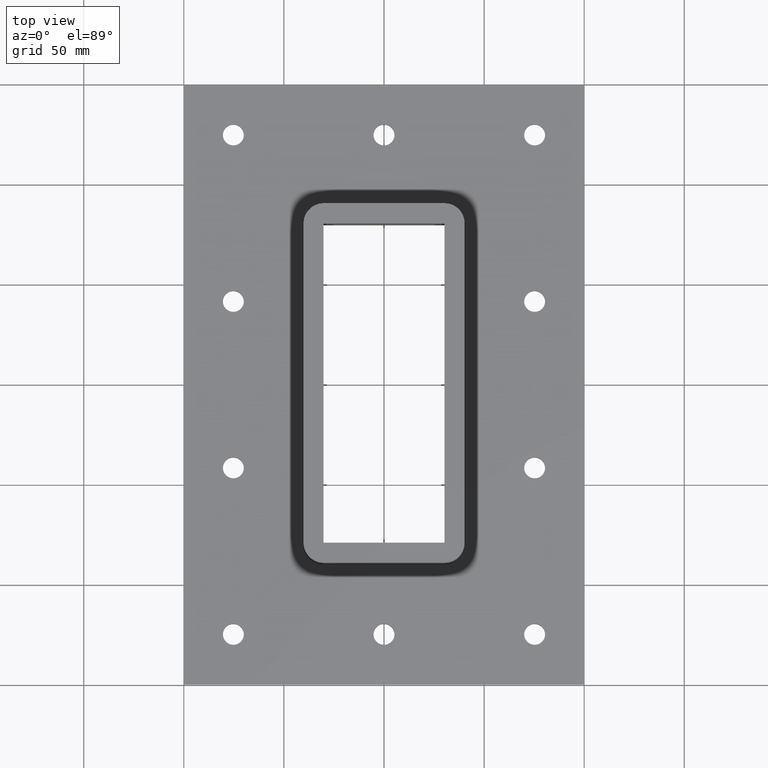
[diagram: clean part render]
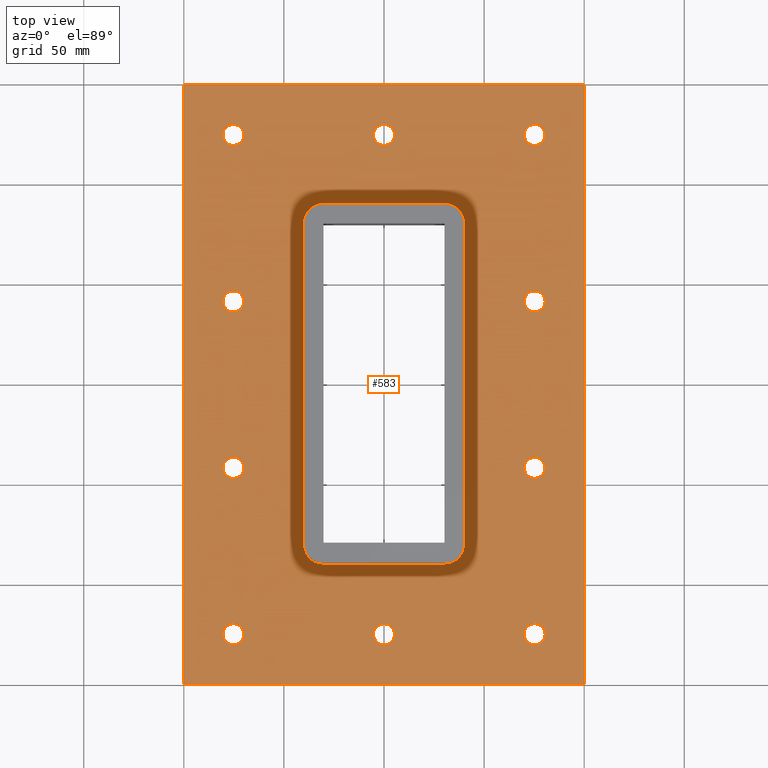
[diagram: same view with one face highlighted and labeled with its STEP entity id]
A machine part, top view. The second image highlights one B-rep face of the part: STEP entity #583.
In plain terms, the highlighted planar face has unit normal (0, 0, 1).
Its self-contained STEP definition (entity closure, byte-faithful):
#84=CARTESIAN_POINT('',(5.249999999999986,-124.75000000000001,-16.999999999999996));
#85=VERTEX_POINT('',#84);
#86=CARTESIAN_POINT('',(-1.776357E-014,-124.75000000000001,-17.000000000000028));
#87=DIRECTION('',(0.0,0.0,-1.0));
#88=DIRECTION('',(1.0,0.0,0.0));
#89=AXIS2_PLACEMENT_3D('',#86,#87,#88);
#90=CIRCLE('',#89,5.25);
#91=EDGE_CURVE('',#85,#85,#90,.T.);
#112=CARTESIAN_POINT('',(5.250000000000021,124.75000000000001,-16.999999999999996));
#113=VERTEX_POINT('',#112);
#114=CARTESIAN_POINT('',(1.776357E-014,124.75000000000001,-17.000000000000028));
#115=DIRECTION('',(0.0,0.0,-1.0));
#116=DIRECTION('',(1.0,0.0,0.0));
#117=AXIS2_PLACEMENT_3D('',#114,#115,#116);
#118=CIRCLE('',#117,5.25);
#119=EDGE_CURVE('',#113,#113,#118,.T.);
#140=CARTESIAN_POINT('',(80.499999999999986,-41.58333333333335,-16.999999999999996));
#141=VERTEX_POINT('',#140);
#142=CARTESIAN_POINT('',(75.249999999999986,-41.58333333333335,-17.000000000000028));
#143=DIRECTION('',(0.0,0.0,-1.0));
#144=DIRECTION('',(1.0,0.0,0.0));
#145=AXIS2_PLACEMENT_3D('',#142,#143,#144);
#146=CIRCLE('',#145,5.25);
#147=EDGE_CURVE('',#141,#141,#146,.T.);
#168=CARTESIAN_POINT('',(80.499999999999986,41.583333333333329,-16.999999999999996));
#169=VERTEX_POINT('',#168);
#170=CARTESIAN_POINT('',(75.249999999999986,41.583333333333329,-17.000000000000028));
#171=DIRECTION('',(0.0,0.0,-1.0));
#172=DIRECTION('',(1.0,0.0,0.0));
#173=AXIS2_PLACEMENT_3D('',#170,#171,#172);
#174=CIRCLE('',#173,5.25);
#175=EDGE_CURVE('',#169,#169,#174,.T.);
#196=CARTESIAN_POINT('',(-69.999999999999986,41.58333333333335,-16.999999999999996));
#197=VERTEX_POINT('',#196);
#198=CARTESIAN_POINT('',(-75.249999999999986,41.58333333333335,-17.000000000000028));
#199=DIRECTION('',(0.0,0.0,-1.0));
#200=DIRECTION('',(1.0,0.0,0.0));
#201=AXIS2_PLACEMENT_3D('',#198,#199,#200);
#202=CIRCLE('',#201,5.25);
#203=EDGE_CURVE('',#197,#197,#202,.T.);
#224=CARTESIAN_POINT('',(-69.999999999999986,-41.583333333333329,-16.999999999999996));
#225=VERTEX_POINT('',#224);
#226=CARTESIAN_POINT('',(-75.249999999999986,-41.583333333333329,-17.000000000000028));
#227=DIRECTION('',(0.0,0.0,-1.0));
#228=DIRECTION('',(1.0,0.0,0.0));
#229=AXIS2_PLACEMENT_3D('',#226,#227,#228);
#230=CIRCLE('',#229,5.25);
#231=EDGE_CURVE('',#225,#225,#230,.T.);
#252=CARTESIAN_POINT('',(-69.999999999999986,124.75000000000001,-16.999999999999996));
#253=VERTEX_POINT('',#252);
#254=CARTESIAN_POINT('',(-75.249999999999986,124.75000000000001,-17.000000000000028));
#255=DIRECTION('',(0.0,0.0,-1.0));
#256=DIRECTION('',(1.0,0.0,0.0));
#257=AXIS2_PLACEMENT_3D('',#254,#255,#256);
#258=CIRCLE('',#257,5.25);
#259=EDGE_CURVE('',#253,#253,#258,.T.);
#280=CARTESIAN_POINT('',(80.499999999999986,124.75000000000001,-16.999999999999996));
#281=VERTEX_POINT('',#280);
#282=CARTESIAN_POINT('',(75.249999999999986,124.75000000000001,-17.000000000000028));
#283=DIRECTION('',(0.0,0.0,-1.0));
#284=DIRECTION('',(1.0,0.0,0.0));
#285=AXIS2_PLACEMENT_3D('',#282,#283,#284);
#286=CIRCLE('',#285,5.25);
#287=EDGE_CURVE('',#281,#281,#286,.T.);
#308=CARTESIAN_POINT('',(80.499999999999986,-124.75000000000001,-16.999999999999996));
#309=VERTEX_POINT('',#308);
#310=CARTESIAN_POINT('',(75.249999999999986,-124.75000000000001,-17.000000000000028));
#311=DIRECTION('',(0.0,0.0,-1.0));
#312=DIRECTION('',(1.0,0.0,0.0));
#313=AXIS2_PLACEMENT_3D('',#310,#311,#312);
#314=CIRCLE('',#313,5.25);
#315=EDGE_CURVE('',#309,#309,#314,.T.);
#336=CARTESIAN_POINT('',(-69.999999999999986,-124.75000000000001,-16.999999999999996));
#337=VERTEX_POINT('',#336);
#338=CARTESIAN_POINT('',(-75.249999999999986,-124.75000000000001,-17.000000000000028));
#339=DIRECTION('',(0.0,0.0,-1.0));
#340=DIRECTION('',(1.0,0.0,0.0));
#341=AXIS2_PLACEMENT_3D('',#338,#339,#340);
#342=CIRCLE('',#341,5.25);
#343=EDGE_CURVE('',#337,#337,#342,.T.);
#363=CARTESIAN_POINT('',(-100.24999999999999,-149.75000000000003,-17.0));
#364=VERTEX_POINT('',#363);
#371=CARTESIAN_POINT('',(-100.24999999999999,149.75,-17.0));
#372=VERTEX_POINT('',#371);
#373=CARTESIAN_POINT('',(-100.24999999999999,149.74999999999997,-17.0));
#374=DIRECTION('',(0.0,-1.0,0.0));
#375=VECTOR('',#374,299.5);
#376=LINE('',#373,#375);
#377=EDGE_CURVE('',#372,#364,#376,.T.);
#402=CARTESIAN_POINT('',(100.24999999999999,149.75,-17.0));
#403=VERTEX_POINT('',#402);
#404=CARTESIAN_POINT('',(100.24999999999999,149.75000000000003,-17.0));
#405=DIRECTION('',(-1.0,0.0,0.0));
#406=VECTOR('',#405,200.49999999999997);
#407=LINE('',#404,#406);
#408=EDGE_CURVE('',#403,#372,#407,.T.);
#433=CARTESIAN_POINT('',(100.24999999999999,-149.75,-17.0));
#434=VERTEX_POINT('',#433);
#435=CARTESIAN_POINT('',(100.24999999999999,-149.75,-17.0));
#436=DIRECTION('',(0.0,1.0,0.0));
#437=VECTOR('',#436,299.5);
#438=LINE('',#435,#437);
#439=EDGE_CURVE('',#434,#403,#438,.T.);
#462=CARTESIAN_POINT('',(-100.24999999999999,-149.75000000000003,-17.0));
#463=DIRECTION('',(1.0,0.0,0.0));
#464=VECTOR('',#463,200.49999999999997);
#465=LINE('',#462,#464);
#466=EDGE_CURVE('',#364,#434,#465,.T.);
#472=CARTESIAN_POINT('',(0.0,-4.263256E-015,-16.999999999999996));
#473=DIRECTION('',(0.0,0.0,1.0));
#474=DIRECTION('',(1.0,0.0,0.0));
#475=AXIS2_PLACEMENT_3D('',#472,#473,#474);
#476=PLANE('',#475);
#477=ORIENTED_EDGE('',*,*,#466,.T.);
#478=ORIENTED_EDGE('',*,*,#439,.T.);
#479=ORIENTED_EDGE('',*,*,#408,.T.);
#480=ORIENTED_EDGE('',*,*,#377,.T.);
#481=EDGE_LOOP('',(#477,#478,#479,#480));
#482=FACE_OUTER_BOUND('',#481,.T.);
#483=ORIENTED_EDGE('',*,*,#91,.T.);
#484=EDGE_LOOP('',(#483));
#485=FACE_BOUND('',#484,.T.);
#486=ORIENTED_EDGE('',*,*,#119,.T.);
#487=EDGE_LOOP('',(#486));
#488=FACE_BOUND('',#487,.T.);
#489=ORIENTED_EDGE('',*,*,#147,.T.);
#490=EDGE_LOOP('',(#489));
#491=FACE_BOUND('',#490,.T.);
#492=ORIENTED_EDGE('',*,*,#175,.T.);
#493=EDGE_LOOP('',(#492));
#494=FACE_BOUND('',#493,.T.);
#495=ORIENTED_EDGE('',*,*,#203,.T.);
#496=EDGE_LOOP('',(#495));
#497=FACE_BOUND('',#496,.T.);
#498=ORIENTED_EDGE('',*,*,#231,.T.);
#499=EDGE_LOOP('',(#498));
#500=FACE_BOUND('',#499,.T.);
#501=ORIENTED_EDGE('',*,*,#259,.T.);
#502=EDGE_LOOP('',(#501));
#503=FACE_BOUND('',#502,.T.);
#504=ORIENTED_EDGE('',*,*,#287,.T.);
#505=EDGE_LOOP('',(#504));
#506=FACE_BOUND('',#505,.T.);
#507=ORIENTED_EDGE('',*,*,#315,.T.);
#508=EDGE_LOOP('',(#507));
#509=FACE_BOUND('',#508,.T.);
#510=ORIENTED_EDGE('',*,*,#343,.T.);
#511=EDGE_LOOP('',(#510));
#512=FACE_BOUND('',#511,.T.);
#513=CARTESIAN_POINT('',(40.249999999999986,79.750000000000014,-17.0));
#514=VERTEX_POINT('',#513);
#515=CARTESIAN_POINT('',(30.249999999999986,89.750000000000014,-17.0));
#516=VERTEX_POINT('',#515);
#517=CARTESIAN_POINT('',(30.249999999999915,79.750000000000128,-16.999999999999996));
#518=DIRECTION('',(0.0,0.0,1.0));
#519=DIRECTION('',(0.707106781186547,0.707106781186548,0.0));
#520=AXIS2_PLACEMENT_3D('',#517,#518,#519);
#521=CIRCLE('',#520,10.0);
#522=EDGE_CURVE('',#514,#516,#521,.T.);
#523=ORIENTED_EDGE('',*,*,#522,.F.);
#524=CARTESIAN_POINT('',(40.249999999999986,-79.750000000000014,-17.0));
#525=VERTEX_POINT('',#524);
#526=CARTESIAN_POINT('',(40.249999999999915,-79.750000000000014,-16.999999999999996));
#527=DIRECTION('',(0.0,1.0,0.0));
#528=VECTOR('',#527,159.50000000000003);
#529=LINE('',#526,#528);
#530=EDGE_CURVE('',#525,#514,#529,.T.);
#531=ORIENTED_EDGE('',*,*,#530,.F.);
#532=CARTESIAN_POINT('',(30.249999999999986,-89.749999999999972,-17.0));
#533=VERTEX_POINT('',#532);
#534=CARTESIAN_POINT('',(30.249999999999915,-79.749999999999829,-16.999999999999996));
#535=DIRECTION('',(0.0,0.0,1.0));
#536=DIRECTION('',(0.707106781186547,-0.707106781186547,0.0));
#537=AXIS2_PLACEMENT_3D('',#534,#535,#536);
#538=CIRCLE('',#537,9.999999999999998);
#539=EDGE_CURVE('',#533,#525,#538,.T.);
#540=ORIENTED_EDGE('',*,*,#539,.F.);
#541=CARTESIAN_POINT('',(-30.250000000000057,-89.749999999999972,-17.0));
#542=VERTEX_POINT('',#541);
#543=CARTESIAN_POINT('',(-30.250000000000057,-89.749999999999829,-16.999999999999996));
#544=DIRECTION('',(1.0,0.0,0.0));
#545=VECTOR('',#544,60.500000000000043);
#546=LINE('',#543,#545);
#547=EDGE_CURVE('',#542,#533,#546,.T.);
#548=ORIENTED_EDGE('',*,*,#547,.F.);
#549=CARTESIAN_POINT('',(-40.250000000000057,-79.750000000000014,-17.0));
#550=VERTEX_POINT('',#549);
#551=CARTESIAN_POINT('',(-30.249999999999993,-79.749999999999829,-16.999999999999996));
#552=DIRECTION('',(0.0,0.0,1.0));
#553=DIRECTION('',(-0.707106781186547,-0.707106781186547,0.0));
#554=AXIS2_PLACEMENT_3D('',#551,#552,#553);
#555=CIRCLE('',#554,9.999999999999998);
#556=EDGE_CURVE('',#550,#542,#555,.T.);
#557=ORIENTED_EDGE('',*,*,#556,.F.);
#558=CARTESIAN_POINT('',(-40.250000000000057,79.750000000000014,-17.0));
#559=VERTEX_POINT('',#558);
#560=CARTESIAN_POINT('',(-40.250000000000121,79.750000000000014,-16.999999999999996));
#561=DIRECTION('',(0.0,-1.0,0.0));
#562=VECTOR('',#561,159.50000000000003);
#563=LINE('',#560,#562);
#564=EDGE_CURVE('',#559,#550,#563,.T.);
#565=ORIENTED_EDGE('',*,*,#564,.F.);
#566=CARTESIAN_POINT('',(-30.250000000000057,89.750000000000014,-17.0));
#567=VERTEX_POINT('',#566);
#568=CARTESIAN_POINT('',(-30.250000000000121,79.750000000000171,-16.999999999999996));
#569=DIRECTION('',(0.0,0.0,1.0));
#570=DIRECTION('',(-0.707106781186548,0.707106781186547,0.0));
#571=AXIS2_PLACEMENT_3D('',#568,#569,#570);
#572=CIRCLE('',#571,10.0);
#573=EDGE_CURVE('',#567,#559,#572,.T.);
#574=ORIENTED_EDGE('',*,*,#573,.F.);
#575=CARTESIAN_POINT('',(30.249999999999986,89.750000000000142,-16.999999999999996));
#576=DIRECTION('',(-1.0,0.0,0.0));
#577=VECTOR('',#576,60.500000000000043);
#578=LINE('',#575,#577);
#579=EDGE_CURVE('',#516,#567,#578,.T.);
#580=ORIENTED_EDGE('',*,*,#579,.F.);
#581=EDGE_LOOP('',(#523,#531,#540,#548,#557,#565,#574,#580));
#582=FACE_BOUND('',#581,.T.);
#583=ADVANCED_FACE('',(#482,#485,#488,#491,#494,#497,#500,#503,#506,#509,#512,#582),#476,.T.);